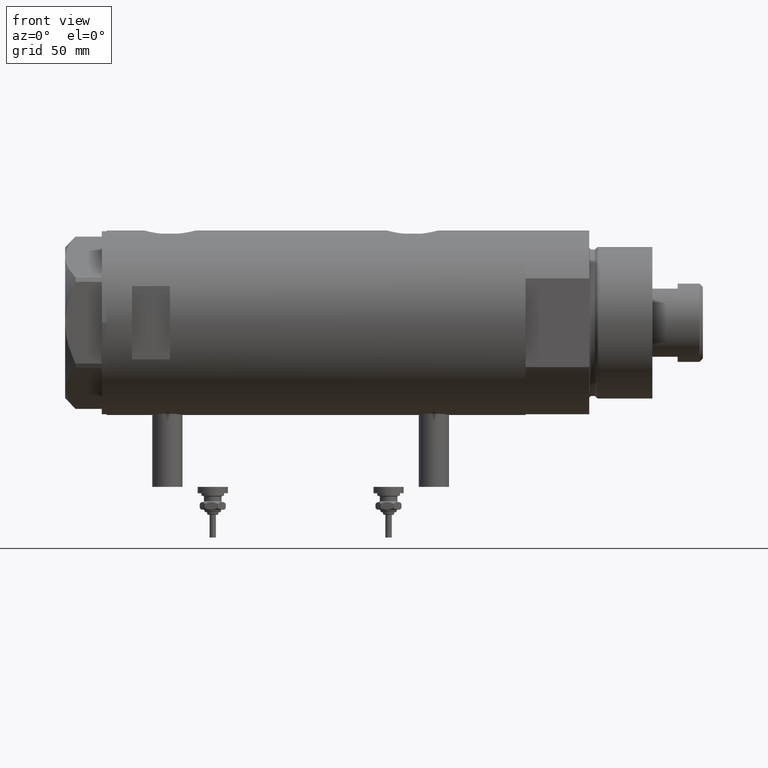
[diagram: clean part render]
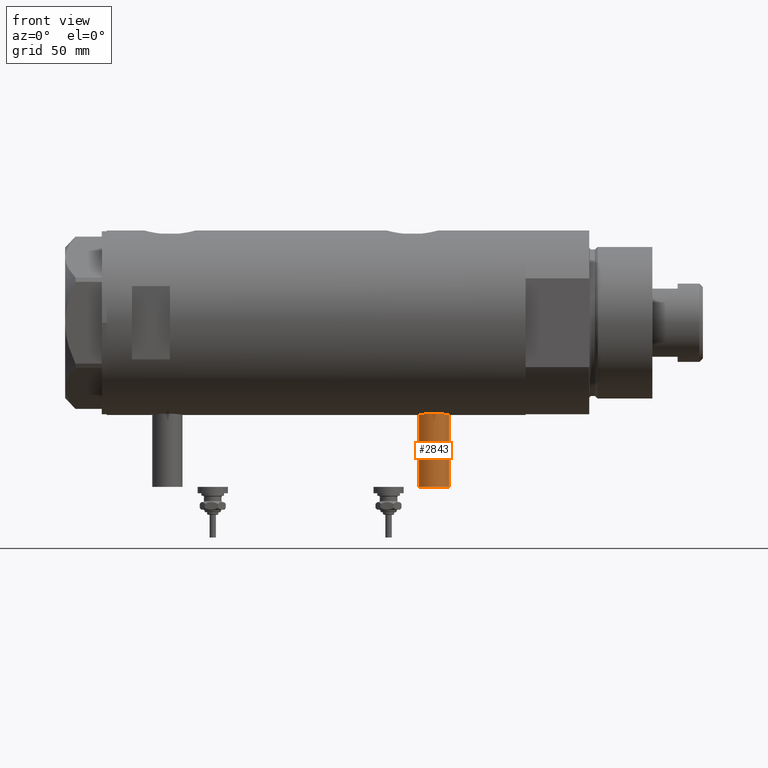
[diagram: same view with one face highlighted and labeled with its STEP entity id]
A machine part, front view. The second image highlights one B-rep face of the part: STEP entity #2843.
In plain terms, the highlighted cylindrical surface (edge-blend (fillet) strip) has radius 6 mm, axis along (0, 0, 1).
Its self-contained STEP definition (entity closure, byte-faithful):
#387 = DIRECTION ( 'NONE',  ( 1.000000000000000000, -0.000000000000000000, -0.000000000000000000 ) ) ;
#509 = EDGE_CURVE ( 'NONE', #3036, #3698, #2679, .T. ) ;
#637 = ORIENTED_EDGE ( 'NONE', *, *, #4881, .F. ) ;
#780 = DIRECTION ( 'NONE',  ( 1.000000000000000000, -0.000000000000000000, -0.000000000000000000 ) ) ;
#1017 = CIRCLE ( 'NONE', #5166, 6.000000000000005329 ) ;
#1315 = DIRECTION ( 'NONE',  ( 0.000000000000000000, 0.000000000000000000, 1.000000000000000000 ) ) ;
#1344 = ORIENTED_EDGE ( 'NONE', *, *, #2418, .T. ) ;
#1345 = CARTESIAN_POINT ( 'NONE',  ( -35.29999999999999716, 0.000000000000000000, -46.60000000000000142 ) ) ;
#1365 = EDGE_CURVE ( 'NONE', #3036, #5012, #1017, .T. ) ;
#1683 = ORIENTED_EDGE ( 'NONE', *, *, #509, .T. ) ;
#1689 = LINE ( 'NONE', #3565, #4325 ) ;
#1720 = DIRECTION ( 'NONE',  ( 1.000000000000000000, -0.000000000000000000, -0.000000000000000000 ) ) ;
#2079 = ORIENTED_EDGE ( 'NONE', *, *, #1365, .F. ) ;
#2161 = CIRCLE ( 'NONE', #3710, 6.000000000000005329 ) ;
#2418 = EDGE_CURVE ( 'NONE', #3698, #2528, #2161, .T. ) ;
#2528 = VERTEX_POINT ( 'NONE', #4123 ) ;
#2679 = LINE ( 'NONE', #3618, #3122 ) ;
#2843 = ADVANCED_FACE ( 'NONE', ( #4972 ), #4005, .T. ) ;
#3002 = EDGE_LOOP ( 'NONE', ( #637, #2079, #1683, #1344 ) ) ;
#3036 = VERTEX_POINT ( 'NONE', #5575 ) ;
#3062 = CARTESIAN_POINT ( 'NONE',  ( -65.00000000000000000, 0.000000000000000000, -46.60000000000000142 ) ) ;
#3092 = DIRECTION ( 'NONE',  ( 0.000000000000000000, 0.000000000000000000, -1.000000000000000000 ) ) ;
#3122 = VECTOR ( 'NONE', #1720, 1000.000000000000000 ) ;
#3565 = CARTESIAN_POINT ( 'NONE',  ( -65.00000000000000000, 7.347880794884122694E-16, -40.59999999999999432 ) ) ;
#3612 = DIRECTION ( 'NONE',  ( -1.000000000000000000, 0.000000000000000000, 0.000000000000000000 ) ) ;
#3618 = CARTESIAN_POINT ( 'NONE',  ( -65.00000000000000000, 0.000000000000000000, -52.60000000000000853 ) ) ;
#3698 = VERTEX_POINT ( 'NONE', #4897 ) ;
#3710 = AXIS2_PLACEMENT_3D ( 'NONE', #1345, #4489, #1315 ) ;
#4005 = CYLINDRICAL_SURFACE ( 'NONE', #4395, 6.000000000000005329 ) ;
#4076 = CARTESIAN_POINT ( 'NONE',  ( -65.00000000000000000, 0.000000000000000000, -46.60000000000000142 ) ) ;
#4123 = CARTESIAN_POINT ( 'NONE',  ( -35.29999999999999716, 7.347880794884119736E-16, -40.59999999999999432 ) ) ;
#4325 = VECTOR ( 'NONE', #387, 1000.000000000000000 ) ;
#4395 = AXIS2_PLACEMENT_3D ( 'NONE', #3062, #780, #3092 ) ;
#4449 = CARTESIAN_POINT ( 'NONE',  ( -65.00000000000000000, 7.347880794884119736E-16, -40.59999999999999432 ) ) ;
#4489 = DIRECTION ( 'NONE',  ( -1.000000000000000000, 0.000000000000000000, 0.000000000000000000 ) ) ;
#4852 = DIRECTION ( 'NONE',  ( 0.000000000000000000, 0.000000000000000000, 1.000000000000000000 ) ) ;
#4881 = EDGE_CURVE ( 'NONE', #5012, #2528, #1689, .T. ) ;
#4897 = CARTESIAN_POINT ( 'NONE',  ( -35.29999999999999716, 0.000000000000000000, -52.60000000000000853 ) ) ;
#4972 = FACE_OUTER_BOUND ( 'NONE', #3002, .T. ) ;
#5012 = VERTEX_POINT ( 'NONE', #4449 ) ;
#5166 = AXIS2_PLACEMENT_3D ( 'NONE', #4076, #3612, #4852 ) ;
#5575 = CARTESIAN_POINT ( 'NONE',  ( -65.00000000000000000, 0.000000000000000000, -52.60000000000000853 ) ) ;